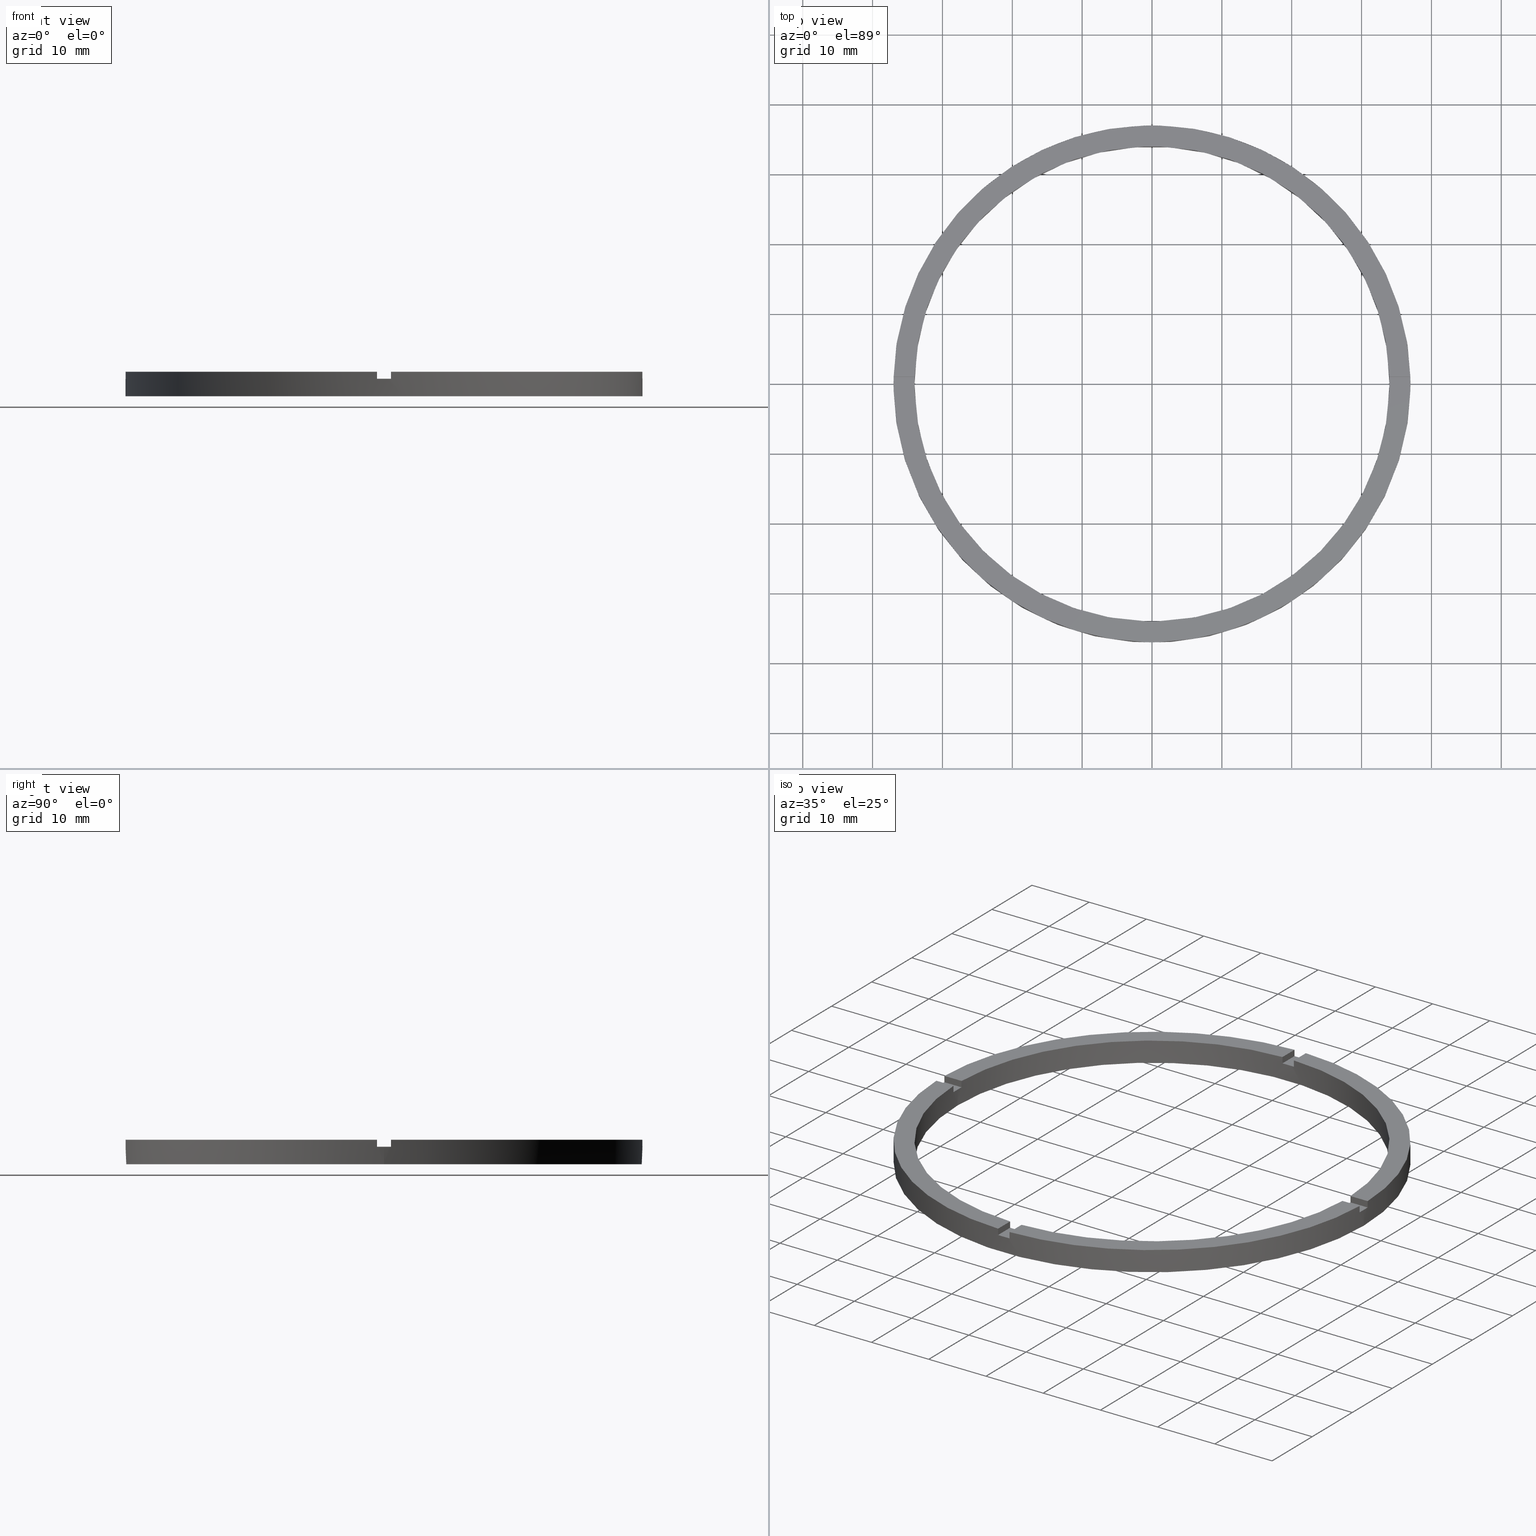
[diagram: canonical four-view strip — front | top / right | iso, engineering-drawing reading convention]
A machine part, canonical four-view strip (front | top / right | iso — engineering-drawing reading convention). The complete STEP part file that produces these views, byte-faithful:
ISO-10303-21;
HEADER;
FILE_DESCRIPTION (( 'STEP AP203' ),
    '1' );
FILE_NAME ('514153.step',
    '2024-12-26T02:42:40',
    ( 'MSI' ),
    ( '' ),
    'SwSTEP 2.0',
    'SolidWorks 2020',
    '' );
FILE_SCHEMA (( 'CONFIG_CONTROL_DESIGN' ));
ENDSEC;

DATA;
#1 = DATE_TIME_ROLE ( 'creation_date' ) ;
#2 = AXIS2_PLACEMENT_3D ( 'NONE', #488, #367, #44 ) ;
#3 = EDGE_CURVE ( 'NONE', #204, #340, #402, .T. ) ;
#4 = CARTESIAN_POINT ( 'NONE',  ( 0.9999999999998395728, -33.98529093593285921, 3.500000000000000000 ) ) ;
#5 = LINE ( 'NONE', #131, #246 ) ;
#6 = DIRECTION ( 'NONE',  ( 1.000000000000000000, 0.000000000000000000, 0.000000000000000000 ) ) ;
#7 = CARTESIAN_POINT ( 'NONE',  ( 0.000000000000000000, 0.000000000000000000, 0.000000000000000000 ) ) ;
#8 = VECTOR ( 'NONE', #225, 1000.000000000000000 ) ;
#9 = APPROVAL_ROLE ( '' ) ;
#10 = ADVANCED_FACE ( 'NONE', ( #653 ), #495, .F. ) ;
#11 = EDGE_CURVE ( 'NONE', #365, #234, #376, .T. ) ;
#12 = EDGE_CURVE ( 'NONE', #382, #31, #655, .T. ) ;
#13 = CIRCLE ( 'NONE', #335, 34.00000000000000000 ) ;
#14 = CARTESIAN_POINT ( 'NONE',  ( -34.00000000000000000, 0.000000000000000000, 0.000000000000000000 ) ) ;
#15 = PERSON_AND_ORGANIZATION_ROLE ( 'design_owner' ) ;
#16 = FACE_OUTER_BOUND ( 'NONE', #722, .T. ) ;
#17 = FACE_OUTER_BOUND ( 'NONE', #99, .T. ) ;
#18 = LINE ( 'NONE', #25, #20 ) ;
#19 = ORIENTED_EDGE ( 'NONE', *, *, #553, .F. ) ;
#20 = VECTOR ( 'NONE', #572, 1000.000000000000000 ) ;
#21 = ORIENTED_EDGE ( 'NONE', *, *, #283, .F. ) ;
#22 = DIRECTION ( 'NONE',  ( 1.000000000000000000, 0.000000000000000000, 0.000000000000000000 ) ) ;
#23 = EDGE_LOOP ( 'NONE', ( #554, #423, #146, #411, #272, #755 ) ) ;
#24 = CC_DESIGN_DATE_AND_TIME_ASSIGNMENT ( #323, #1, ( #505 ) ) ;
#25 = CARTESIAN_POINT ( 'NONE',  ( -1.000000000000161426, -27.00000000000017764, 3.500000000000000000 ) ) ;
#26 = CARTESIAN_POINT ( 'NONE',  ( 33.98529093593285921, 0.9999999999998421263, 2.500000000000000000 ) ) ;
#27 = ORIENTED_EDGE ( 'NONE', *, *, #713, .T. ) ;
#28 = ADVANCED_FACE ( 'NONE', ( #390 ), #728, .F. ) ;
#29 = DIRECTION ( 'NONE',  ( 1.951563910473907735E-16, -1.000000000000000000, 0.000000000000000000 ) ) ;
#30 = AXIS2_PLACEMENT_3D ( 'NONE', #575, #657, #48 ) ;
#31 = VERTEX_POINT ( 'NONE', #252 ) ;
#32 = DIRECTION ( 'NONE',  ( -0.000000000000000000, -0.000000000000000000, -1.000000000000000000 ) ) ;
#33 = EDGE_CURVE ( 'NONE', #623, #206, #118, .T. ) ;
#34 = EDGE_CURVE ( 'NONE', #635, #352, #108, .T. ) ;
#35 = AXIS2_PLACEMENT_3D ( 'NONE', #217, #319, #585 ) ;
#36 = DIRECTION ( 'NONE',  ( 0.000000000000000000, 0.000000000000000000, 1.000000000000000000 ) ) ;
#37 = CARTESIAN_POINT ( 'NONE',  ( -33.98529093593285211, -1.000000000000026867, 3.500000000000000000 ) ) ;
#38 = PLANE ( 'NONE',  #583 ) ;
#39 = CARTESIAN_POINT ( 'NONE',  ( 0.000000000000000000, 0.000000000000000000, 2.500000000000000000 ) ) ;
#40 = DIRECTION ( 'NONE',  ( 1.000000000000000000, 0.000000000000000000, 0.000000000000000000 ) ) ;
#41 = EDGE_CURVE ( 'NONE', #739, #545, #643, .T. ) ;
#42 = DIRECTION ( 'NONE',  ( 1.000000000000000000, 0.000000000000000000, 0.000000000000000000 ) ) ;
#43 = PLANE ( 'NONE',  #113 ) ;
#44 = DIRECTION ( 'NONE',  ( 1.301042606982605074E-16, -1.000000000000000000, 0.000000000000000000 ) ) ;
#45 = APPLICATION_PROTOCOL_DEFINITION ( 'international standard', 'config_control_design', 1994, #490 ) ;
#46 = VECTOR ( 'NONE', #188, 1000.000000000000000 ) ;
#47 = LINE ( 'NONE', #442, #579 ) ;
#48 = DIRECTION ( 'NONE',  ( 1.000000000000000000, 0.000000000000000000, -0.000000000000000000 ) ) ;
#49 = CARTESIAN_POINT ( 'NONE',  ( -1.000000000000025091, 26.99999999999999645, 2.500000000000000000 ) ) ;
#50 = VECTOR ( 'NONE', #738, 1000.000000000000000 ) ;
#51 = SECURITY_CLASSIFICATION ( '', '', #243 ) ;
#52 = ADVANCED_FACE ( 'NONE', ( #404 ), #366, .T. ) ;
#53 = VECTOR ( 'NONE', #293, 1000.000000000000000 ) ;
#54 = CARTESIAN_POINT ( 'NONE',  ( 0.000000000000000000, 0.000000000000000000, 3.500000000000000000 ) ) ;
#55 = AXIS2_PLACEMENT_3D ( 'NONE', #304, #268, #190 ) ;
#56 = CARTESIAN_POINT ( 'NONE',  ( -36.98648401781385786, -1.000000000000027311, 3.500000000000000000 ) ) ;
#57 = ADVANCED_FACE ( 'NONE', ( #372 ), #727, .F. ) ;
#58 = LINE ( 'NONE', #170, #46 ) ;
#59 = DIRECTION ( 'NONE',  ( 1.000000000000000000, 1.951563910473907735E-16, -0.000000000000000000 ) ) ;
#60 = CARTESIAN_POINT ( 'NONE',  ( 37.00000000000000000, 4.531193156845206793E-15, 2.500000000000000000 ) ) ;
#61 = DIRECTION ( 'NONE',  ( 1.000000000000000000, 1.301042606982605074E-16, 0.000000000000000000 ) ) ;
#62 = ORGANIZATION ( 'δָ��', 'δָ��', '' ) ;
#63 = CALENDAR_DATE ( 2024, 26, 12 ) ;
#64 = EDGE_CURVE ( 'NONE', #31, #493, #393, .T. ) ;
#65 = CARTESIAN_POINT ( 'NONE',  ( 0.000000000000000000, 0.000000000000000000, 3.500000000000000000 ) ) ;
#66 = AXIS2_PLACEMENT_3D ( 'NONE', #528, #568, #156 ) ;
#67 = APPROVAL_DATE_TIME ( #588, #523 ) ;
#68 = CARTESIAN_POINT ( 'NONE',  ( 0.000000000000000000, 0.000000000000000000, 3.500000000000000000 ) ) ;
#69 = PERSON_AND_ORGANIZATION ( #279, #62 ) ;
#70 = PERSON_AND_ORGANIZATION_ROLE ( 'design_supplier' ) ;
#71 = LOCAL_TIME ( 10, 42, 40.00000000000000000, #88 ) ;
#72 = DIRECTION ( 'NONE',  ( 1.000000000000000000, 0.000000000000000000, 0.000000000000000000 ) ) ;
#73 = APPROVAL_DATE_TIME ( #78, #651 ) ;
#74 = DIRECTION ( 'NONE',  ( 0.000000000000000000, 0.000000000000000000, 1.000000000000000000 ) ) ;
#75 = COORDINATED_UNIVERSAL_TIME_OFFSET ( 8, 0, .AHEAD. ) ;
#76 = EDGE_CURVE ( 'NONE', #150, #648, #659, .T. ) ;
#77 = CIRCLE ( 'NONE', #412, 37.00000000000000000 ) ;
#78 = DATE_AND_TIME ( #610, #315 ) ;
#79 = FACE_OUTER_BOUND ( 'NONE', #353, .T. ) ;
#80 = LINE ( 'NONE', #520, #629 ) ;
#81 = APPROVAL_PERSON_ORGANIZATION ( #69, #328, #431 ) ;
#82 = DIRECTION ( 'NONE',  ( 0.000000000000000000, 0.000000000000000000, 1.000000000000000000 ) ) ;
#83 = VECTOR ( 'NONE', #625, 1000.000000000000000 ) ;
#84 = APPROVAL_PERSON_ORGANIZATION ( #607, #651, #361 ) ;
#85 = DIRECTION ( 'NONE',  ( 1.000000000000000000, 0.000000000000000000, -0.000000000000000000 ) ) ;
#86 = PERSON_AND_ORGANIZATION ( #279, #62 ) ;
#87 = VECTOR ( 'NONE', #185, 1000.000000000000000 ) ;
#88 = COORDINATED_UNIVERSAL_TIME_OFFSET ( 8, 0, .AHEAD. ) ;
#89 = LINE ( 'NONE', #305, #83 ) ;
#90 = ORIENTED_EDGE ( 'NONE', *, *, #514, .F. ) ;
#91 = ORIENTED_EDGE ( 'NONE', *, *, #64, .T. ) ;
#92 = DIRECTION ( 'NONE',  ( -1.000000000000000000, 0.000000000000000000, 0.000000000000000000 ) ) ;
#93 = DIRECTION ( 'NONE',  ( -0.000000000000000000, -0.000000000000000000, -1.000000000000000000 ) ) ;
#94 = LINE ( 'NONE', #37, #617 ) ;
#95 = PRODUCT ( '514153', '514153', '', ( #496 ) ) ;
#96 = EDGE_LOOP ( 'NONE', ( #647, #377, #497, #133, #154, #628 ) ) ;
#97 = DIRECTION ( 'NONE',  ( 0.000000000000000000, 0.000000000000000000, 1.000000000000000000 ) ) ;
#98 = VECTOR ( 'NONE', #444, 1000.000000000000000 ) ;
#99 = EDGE_LOOP ( 'NONE', ( #731, #285, #455, #538 ) ) ;
#100 = DIRECTION ( 'NONE',  ( 0.000000000000000000, 0.000000000000000000, 1.000000000000000000 ) ) ;
#101 = AXIS2_PLACEMENT_3D ( 'NONE', #502, #535, #248 ) ;
#102 = CLOSED_SHELL ( 'NONE', ( #177, #478, #447, #381, #565, #52, #299, #593, #513, #698, #10, #291, #28, #606, #191, #266, #351, #429, #157, #57, #620 ) ) ;
#103 = DIRECTION ( 'NONE',  ( -0.000000000000000000, 0.000000000000000000, 1.000000000000000000 ) ) ;
#104 = DIRECTION ( 'NONE',  ( 1.000000000000000000, 0.000000000000000000, -0.000000000000000000 ) ) ;
#105 = CIRCLE ( 'NONE', #35, 37.00000000000000000 ) ;
#106 = ORIENTED_EDGE ( 'NONE', *, *, #445, .T. ) ;
#107 = ORIENTED_EDGE ( 'NONE', *, *, #515, .F. ) ;
#108 = LINE ( 'NONE', #689, #120 ) ;
#109 = VERTEX_POINT ( 'NONE', #433 ) ;
#110 = EDGE_CURVE ( 'NONE', #224, #684, #123, .T. ) ;
#111 = CARTESIAN_POINT ( 'NONE',  ( 33.98529093593285211, -1.000000000000157874, 3.500000000000000000 ) ) ;
#112 = AXIS2_PLACEMENT_3D ( 'NONE', #54, #435, #138 ) ;
#113 = AXIS2_PLACEMENT_3D ( 'NONE', #470, #783, #117 ) ;
#114 = VERTEX_POINT ( 'NONE', #430 ) ;
#115 = VERTEX_POINT ( 'NONE', #705 ) ;
#116 = ORIENTED_EDGE ( 'NONE', *, *, #479, .F. ) ;
#117 = DIRECTION ( 'NONE',  ( 1.000000000000000000, 6.505213034913025371E-17, 0.000000000000000000 ) ) ;
#118 = LINE ( 'NONE', #561, #137 ) ;
#119 = ORIENTED_EDGE ( 'NONE', *, *, #362, .F. ) ;
#120 = VECTOR ( 'NONE', #59, 1000.000000000000000 ) ;
#121 = VERTEX_POINT ( 'NONE', #543 ) ;
#122 = DIRECTION ( 'NONE',  ( -1.000000000000000000, 0.000000000000000000, 0.000000000000000000 ) ) ;
#123 = LINE ( 'NONE', #174, #129 ) ;
#124 = ORIENTED_EDGE ( 'NONE', *, *, #466, .F. ) ;
#125 = ORIENTED_EDGE ( 'NONE', *, *, #700, .F. ) ;
#126 = DIRECTION ( 'NONE',  ( 1.000000000000000000, 1.951563910473907735E-16, 0.000000000000000000 ) ) ;
#127 = ORIENTED_EDGE ( 'NONE', *, *, #632, .F. ) ;
#128 = ORIENTED_EDGE ( 'NONE', *, *, #770, .T. ) ;
#129 = VECTOR ( 'NONE', #679, 1000.000000000000000 ) ;
#130 = ORIENTED_EDGE ( 'NONE', *, *, #553, .T. ) ;
#131 = CARTESIAN_POINT ( 'NONE',  ( 33.98529093593285921, 0.9999999999998421263, 3.500000000000000000 ) ) ;
#132 = CARTESIAN_POINT ( 'NONE',  ( 0.9999999999999749090, 26.99999999999999645, 2.500000000000000000 ) ) ;
#133 = ORIENTED_EDGE ( 'NONE', *, *, #531, .F. ) ;
#134 = CARTESIAN_POINT ( 'NONE',  ( 0.9999999999999749090, 33.98529093593285921, 3.500000000000000000 ) ) ;
#135 = VECTOR ( 'NONE', #180, 1000.000000000000000 ) ;
#136 = ORIENTED_EDGE ( 'NONE', *, *, #250, .F. ) ;
#137 = VECTOR ( 'NONE', #373, 1000.000000000000000 ) ;
#138 = DIRECTION ( 'NONE',  ( 1.000000000000000000, 0.000000000000000000, -0.000000000000000000 ) ) ;
#139 = AXIS2_PLACEMENT_3D ( 'NONE', #536, #649, #122 ) ;
#140 = CARTESIAN_POINT ( 'NONE',  ( 0.9999999999999749090, 26.99999999999999645, 3.500000000000000000 ) ) ;
#141 = DIRECTION ( 'NONE',  ( -1.301042606982605074E-16, 1.000000000000000000, 0.000000000000000000 ) ) ;
#142 = ORIENTED_EDGE ( 'NONE', *, *, #531, .T. ) ;
#143 = EDGE_LOOP ( 'NONE', ( #196, #645, #465, #482 ) ) ;
#144 = ORIENTED_EDGE ( 'NONE', *, *, #312, .F. ) ;
#145 = EDGE_LOOP ( 'NONE', ( #761, #91 ) ) ;
#146 = ORIENTED_EDGE ( 'NONE', *, *, #438, .T. ) ;
#147 = DIRECTION ( 'NONE',  ( 0.000000000000000000, 0.000000000000000000, 1.000000000000000000 ) ) ;
#148 = DIRECTION ( 'NONE',  ( 1.000000000000000000, 0.000000000000000000, 0.000000000000000000 ) ) ;
#149 = CARTESIAN_POINT ( 'NONE',  ( -37.00000000000000000, 0.000000000000000000, 2.500000000000000000 ) ) ;
#150 = VERTEX_POINT ( 'NONE', #405 ) ;
#151 = AXIS2_PLACEMENT_3D ( 'NONE', #552, #608, #436 ) ;
#152 = VERTEX_POINT ( 'NONE', #769 ) ;
#153 = DIRECTION ( 'NONE',  ( 0.000000000000000000, 0.000000000000000000, 1.000000000000000000 ) ) ;
#154 = ORIENTED_EDGE ( 'NONE', *, *, #504, .F. ) ;
#155 = LINE ( 'NONE', #454, #426 ) ;
#156 = DIRECTION ( 'NONE',  ( 1.000000000000000000, 0.000000000000000000, -0.000000000000000000 ) ) ;
#157 = ADVANCED_FACE ( 'NONE', ( #662 ), #706, .F. ) ;
#158 = DIRECTION ( 'NONE',  ( 1.000000000000000000, 0.000000000000000000, 0.000000000000000000 ) ) ;
#159 = CIRCLE ( 'NONE', #290, 37.00000000000000000 ) ;
#160 = EDGE_CURVE ( 'NONE', #375, #204, #669, .T. ) ;
#161 = DIRECTION ( 'NONE',  ( 1.000000000000000000, 0.000000000000000000, 0.000000000000000000 ) ) ;
#162 = DIRECTION ( 'NONE',  ( 0.000000000000000000, 0.000000000000000000, 1.000000000000000000 ) ) ;
#163 = DIRECTION ( 'NONE',  ( 0.000000000000000000, 0.000000000000000000, 1.000000000000000000 ) ) ;
#164 = DIRECTION ( 'NONE',  ( 1.000000000000000000, 0.000000000000000000, 0.000000000000000000 ) ) ;
#165 = CC_DESIGN_SECURITY_CLASSIFICATION ( #51, ( #296 ) ) ;
#166 = DIRECTION ( 'NONE',  ( -1.000000000000000000, -6.505213034913025371E-17, 0.000000000000000000 ) ) ;
#167 = AXIS2_PLACEMENT_3D ( 'NONE', #39, #103, #164 ) ;
#168 = DIRECTION ( 'NONE',  ( 0.000000000000000000, 0.000000000000000000, 1.000000000000000000 ) ) ;
#169 = DIRECTION ( 'NONE',  ( 1.000000000000000000, 0.000000000000000000, 0.000000000000000000 ) ) ;
#170 = CARTESIAN_POINT ( 'NONE',  ( -27.00000000000018474, 0.9999999999999746869, 2.500000000000000000 ) ) ;
#171 = AXIS2_PLACEMENT_3D ( 'NONE', #754, #29, #126 ) ;
#172 = AXIS2_PLACEMENT_3D ( 'NONE', #563, #74, #567 ) ;
#173 = DIRECTION ( 'NONE',  ( 0.000000000000000000, 0.000000000000000000, 1.000000000000000000 ) ) ;
#174 = CARTESIAN_POINT ( 'NONE',  ( -27.00000000000018474, 0.9999999999999746869, 3.500000000000000000 ) ) ;
#175 = CARTESIAN_POINT ( 'NONE',  ( 0.000000000000000000, 0.000000000000000000, 2.500000000000000000 ) ) ;
#176 = CARTESIAN_POINT ( 'NONE',  ( -34.00000000000000000, 0.000000000000000000, 3.500000000000000000 ) ) ;
#177 = ADVANCED_FACE ( 'NONE', ( #425 ), #680, .F. ) ;
#178 = DIRECTION ( 'NONE',  ( -0.000000000000000000, -0.000000000000000000, -1.000000000000000000 ) ) ;
#179 = EDGE_CURVE ( 'NONE', #340, #742, #155, .T. ) ;
#180 = DIRECTION ( 'NONE',  ( -0.000000000000000000, -0.000000000000000000, -1.000000000000000000 ) ) ;
#181 = EDGE_CURVE ( 'NONE', #686, #461, #159, .T. ) ;
#182 = EDGE_CURVE ( 'NONE', #203, #114, #677, .T. ) ;
#183 = DIRECTION ( 'NONE',  ( 1.000000000000000000, 0.000000000000000000, 0.000000000000000000 ) ) ;
#184 = DIRECTION ( 'NONE',  ( 1.000000000000000000, -0.000000000000000000, 0.000000000000000000 ) ) ;
#185 = DIRECTION ( 'NONE',  ( 0.000000000000000000, 1.000000000000000000, 0.000000000000000000 ) ) ;
#186 = CARTESIAN_POINT ( 'NONE',  ( 34.00000000000000000, 4.163799117101000559E-15, 3.500000000000000000 ) ) ;
#187 = EDGE_CURVE ( 'NONE', #375, #742, #105, .T. ) ;
#188 = DIRECTION ( 'NONE',  ( -1.000000000000000000, -1.951563910473907735E-16, 0.000000000000000000 ) ) ;
#189 = DIRECTION ( 'NONE',  ( -1.000000000000000000, 0.000000000000000000, 0.000000000000000000 ) ) ;
#190 = DIRECTION ( 'NONE',  ( 1.000000000000000000, 0.000000000000000000, -0.000000000000000000 ) ) ;
#191 = ADVANCED_FACE ( 'NONE', ( #356 ), #707, .T. ) ;
#192 = ORIENTED_EDGE ( 'NONE', *, *, #600, .F. ) ;
#193 = CC_DESIGN_DATE_AND_TIME_ASSIGNMENT ( #605, #618, ( #51 ) ) ;
#194 = CARTESIAN_POINT ( 'NONE',  ( -36.98648401781385786, 0.9999999999999726885, 3.500000000000000000 ) ) ;
#195 = ORIENTED_EDGE ( 'NONE', *, *, #3, .T. ) ;
#196 = ORIENTED_EDGE ( 'NONE', *, *, #160, .T. ) ;
#197 = ORIENTED_EDGE ( 'NONE', *, *, #263, .T. ) ;
#198 = AXIS2_PLACEMENT_3D ( 'NONE', #530, #582, #472 ) ;
#199 = CARTESIAN_POINT ( 'NONE',  ( 36.98648401781385076, -1.000000000000157652, 3.500000000000000000 ) ) ;
#200 = ORIENTED_EDGE ( 'NONE', *, *, #160, .F. ) ;
#201 = ORIENTED_EDGE ( 'NONE', *, *, #41, .T. ) ;
#202 = ORIENTED_EDGE ( 'NONE', *, *, #261, .F. ) ;
#203 = VERTEX_POINT ( 'NONE', #292 ) ;
#204 = VERTEX_POINT ( 'NONE', #4 ) ;
#205 = EDGE_CURVE ( 'NONE', #623, #480, #326, .T. ) ;
#206 = VERTEX_POINT ( 'NONE', #771 ) ;
#207 = DIRECTION ( 'NONE',  ( 1.000000000000000000, 6.505213034913025371E-17, 0.000000000000000000 ) ) ;
#208 = ORIENTED_EDGE ( 'NONE', *, *, #12, .F. ) ;
#209 = EDGE_CURVE ( 'NONE', #204, #654, #342, .T. ) ;
#210 = AXIS2_PLACEMENT_3D ( 'NONE', #68, #701, #417 ) ;
#211 = DIRECTION ( 'NONE',  ( 0.000000000000000000, 0.000000000000000000, 1.000000000000000000 ) ) ;
#212 = ORIENTED_EDGE ( 'NONE', *, *, #362, .T. ) ;
#213 = FACE_OUTER_BOUND ( 'NONE', #670, .T. ) ;
#214 = CIRCLE ( 'NONE', #198, 37.00000000000000000 ) ;
#215 = ORIENTED_EDGE ( 'NONE', *, *, #308, .F. ) ;
#216 = DIRECTION ( 'NONE',  ( 0.000000000000000000, 0.000000000000000000, 1.000000000000000000 ) ) ;
#217 = CARTESIAN_POINT ( 'NONE',  ( 0.000000000000000000, 0.000000000000000000, 3.500000000000000000 ) ) ;
#218 = ORIENTED_EDGE ( 'NONE', *, *, #182, .T. ) ;
#219 = ORIENTED_EDGE ( 'NONE', *, *, #422, .T. ) ;
#220 = DIRECTION ( 'NONE',  ( 1.000000000000000000, 0.000000000000000000, -0.000000000000000000 ) ) ;
#221 = ORIENTED_EDGE ( 'NONE', *, *, #702, .F. ) ;
#222 = EDGE_CURVE ( 'NONE', #737, #352, #94, .T. ) ;
#223 = LINE ( 'NONE', #111, #744 ) ;
#224 = VERTEX_POINT ( 'NONE', #286 ) ;
#225 = DIRECTION ( 'NONE',  ( -0.000000000000000000, -0.000000000000000000, -1.000000000000000000 ) ) ;
#226 = VERTEX_POINT ( 'NONE', #448 ) ;
#227 = ORIENTED_EDGE ( 'NONE', *, *, #181, .T. ) ;
#228 = CARTESIAN_POINT ( 'NONE',  ( 34.00000000000000000, 4.163799117101000559E-15, 2.500000000000000000 ) ) ;
#229 = CIRCLE ( 'NONE', #696, 37.00000000000000000 ) ;
#230 = ORIENTED_EDGE ( 'NONE', *, *, #479, .T. ) ;
#231 = ORIENTED_EDGE ( 'NONE', *, *, #570, .F. ) ;
#232 = LINE ( 'NONE', #257, #241 ) ;
#233 = ORIENTED_EDGE ( 'NONE', *, *, #419, .T. ) ;
#234 = VERTEX_POINT ( 'NONE', #777 ) ;
#235 = ORIENTED_EDGE ( 'NONE', *, *, #719, .F. ) ;
#236 = ORIENTED_EDGE ( 'NONE', *, *, #308, .T. ) ;
#237 = CARTESIAN_POINT ( 'NONE',  ( 33.98529093593285211, -1.000000000000157874, 3.500000000000000000 ) ) ;
#238 = PLANE ( 'NONE',  #708 ) ;
#239 = CARTESIAN_POINT ( 'NONE',  ( 0.000000000000000000, 0.000000000000000000, 0.000000000000000000 ) ) ;
#240 = CC_DESIGN_PERSON_AND_ORGANIZATION_ASSIGNMENT ( #318, #374, ( #296 ) ) ;
#241 = VECTOR ( 'NONE', #452, 1000.000000000000000 ) ;
#242 = VECTOR ( 'NONE', #773, 1000.000000000000000 ) ;
#243 = SECURITY_CLASSIFICATION_LEVEL ( 'unclassified' ) ;
#244 = CIRCLE ( 'NONE', #710, 34.00000000000000000 ) ;
#245 = CARTESIAN_POINT ( 'NONE',  ( -37.00000000000000000, 0.000000000000000000, 0.000000000000000000 ) ) ;
#246 = VECTOR ( 'NONE', #178, 1000.000000000000000 ) ;
#247 = CARTESIAN_POINT ( 'NONE',  ( -37.00000000000000000, 0.000000000000000000, 3.500000000000000000 ) ) ;
#248 = DIRECTION ( 'NONE',  ( 1.000000000000000000, 0.000000000000000000, 0.000000000000000000 ) ) ;
#249 = VECTOR ( 'NONE', #97, 1000.000000000000000 ) ;
#250 = EDGE_CURVE ( 'NONE', #234, #623, #77, .T. ) ;
#251 = CARTESIAN_POINT ( 'NONE',  ( -36.98648401781385786, -1.000000000000027311, 2.500000000000000000 ) ) ;
#252 = CARTESIAN_POINT ( 'NONE',  ( 34.00000000000000000, 4.163799117101000559E-15, 0.000000000000000000 ) ) ;
#253 = AXIS2_PLACEMENT_3D ( 'NONE', #132, #184, #687 ) ;
#254 = AXIS2_PLACEMENT_3D ( 'NONE', #486, #82, #325 ) ;
#255 = LINE ( 'NONE', #556, #249 ) ;
#256 = PLANE ( 'NONE',  #2 ) ;
#257 = CARTESIAN_POINT ( 'NONE',  ( -1.000000000000025091, 26.99999999999999645, 3.500000000000000000 ) ) ;
#258 = CARTESIAN_POINT ( 'NONE',  ( -33.98529093593285921, 0.9999999999999731326, 2.500000000000000000 ) ) ;
#259 = CARTESIAN_POINT ( 'NONE',  ( -1.000000000000025091, 26.99999999999999645, 2.500000000000000000 ) ) ;
#260 = DESIGN_CONTEXT ( 'detailed design', #384, 'design' ) ;
#261 = EDGE_CURVE ( 'NONE', #745, #492, #622, .T. ) ;
#262 = DIRECTION ( 'NONE',  ( 0.000000000000000000, 0.000000000000000000, 1.000000000000000000 ) ) ;
#263 = EDGE_CURVE ( 'NONE', #745, #480, #80, .T. ) ;
#264 = CARTESIAN_POINT ( 'NONE',  ( 0.9999999999998400169, -36.98648401781386497, 3.500000000000000000 ) ) ;
#265 = CIRCLE ( 'NONE', #688, 34.00000000000000000 ) ;
#266 = ADVANCED_FACE ( 'NONE', ( #634 ), #334, .F. ) ;
#267 = FACE_OUTER_BOUND ( 'NONE', #748, .T. ) ;
#268 = DIRECTION ( 'NONE',  ( 0.000000000000000000, 0.000000000000000000, 1.000000000000000000 ) ) ;
#269 = CIRCLE ( 'NONE', #167, 34.00000000000000000 ) ;
#270 = AXIS2_PLACEMENT_3D ( 'NONE', #301, #775, #453 ) ;
#271 = LINE ( 'NONE', #715, #276 ) ;
#272 = ORIENTED_EDGE ( 'NONE', *, *, #445, .F. ) ;
#273 = DIRECTION ( 'NONE',  ( 1.301042606982605074E-16, -1.000000000000000000, 0.000000000000000000 ) ) ;
#274 = ORIENTED_EDGE ( 'NONE', *, *, #676, .F. ) ;
#275 = DIRECTION ( 'NONE',  ( -0.000000000000000000, 0.000000000000000000, 1.000000000000000000 ) ) ;
#276 = VECTOR ( 'NONE', #341, 1000.000000000000000 ) ;
#277 = VECTOR ( 'NONE', #311, 1000.000000000000000 ) ;
#278 = ORIENTED_EDGE ( 'NONE', *, *, #504, .T. ) ;
#279 = PERSON ( 'δָ��', 'δָ��', 'δָ��', ('δָ��'), ('δָ��'), ('δָ��') ) ;
#280 = DIRECTION ( 'NONE',  ( 1.000000000000000000, 0.000000000000000000, 0.000000000000000000 ) ) ;
#281 = DIRECTION ( 'NONE',  ( -1.000000000000000000, 0.000000000000000000, 0.000000000000000000 ) ) ;
#282 = FACE_BOUND ( 'NONE', #145, .T. ) ;
#283 = EDGE_CURVE ( 'NONE', #114, #226, #359, .T. ) ;
#284 = DIRECTION ( 'NONE',  ( 0.000000000000000000, 0.000000000000000000, 1.000000000000000000 ) ) ;
#285 = ORIENTED_EDGE ( 'NONE', *, *, #466, .T. ) ;
#286 = CARTESIAN_POINT ( 'NONE',  ( -33.98529093593285921, 0.9999999999999731326, 3.500000000000000000 ) ) ;
#287 = CARTESIAN_POINT ( 'NONE',  ( 0.000000000000000000, 0.000000000000000000, 3.500000000000000000 ) ) ;
#288 = PLANE ( 'NONE',  #55 ) ;
#289 = EDGE_CURVE ( 'NONE', #109, #461, #18, .T. ) ;
#290 = AXIS2_PLACEMENT_3D ( 'NONE', #550, #36, #757 ) ;
#291 = ADVANCED_FACE ( 'NONE', ( #549 ), #518, .T. ) ;
#292 = CARTESIAN_POINT ( 'NONE',  ( -1.000000000000160538, -33.98529093593285211, 2.500000000000000000 ) ) ;
#293 = DIRECTION ( 'NONE',  ( -0.000000000000000000, -1.000000000000000000, -0.000000000000000000 ) ) ;
#294 = CARTESIAN_POINT ( 'NONE',  ( 0.000000000000000000, 0.000000000000000000, 3.500000000000000000 ) ) ;
#295 = APPLICATION_PROTOCOL_DEFINITION ( 'international standard', 'config_control_design', 1994, #384 ) ;
#296 = PRODUCT_DEFINITION_FORMATION_WITH_SPECIFIED_SOURCE ( '�κ�', '', #95, .NOT_KNOWN. ) ;
#297 = CARTESIAN_POINT ( 'NONE',  ( 0.000000000000000000, 0.000000000000000000, 3.500000000000000000 ) ) ;
#298 =( NAMED_UNIT ( * ) PLANE_ANGLE_UNIT ( ) SI_UNIT ( $, .RADIAN. ) );
#299 = ADVANCED_FACE ( 'NONE', ( #16, #282 ), #576, .F. ) ;
#300 = AXIS2_PLACEMENT_3D ( 'NONE', #507, #691, #72 ) ;
#301 = CARTESIAN_POINT ( 'NONE',  ( 0.000000000000000000, 0.000000000000000000, 3.500000000000000000 ) ) ;
#302 = CARTESIAN_POINT ( 'NONE',  ( 0.9999999999998395728, -33.98529093593285921, 2.500000000000000000 ) ) ;
#303 = DIRECTION ( 'NONE',  ( -1.000000000000000000, -1.951563910473907735E-16, 0.000000000000000000 ) ) ;
#304 = CARTESIAN_POINT ( 'NONE',  ( 0.000000000000000000, 0.000000000000000000, 3.500000000000000000 ) ) ;
#305 = CARTESIAN_POINT ( 'NONE',  ( 26.99999999999998934, 0.9999999999998416822, 3.500000000000000000 ) ) ;
#306 =( GEOMETRIC_REPRESENTATION_CONTEXT ( 3 ) GLOBAL_UNCERTAINTY_ASSIGNED_CONTEXT ( ( #407 ) ) GLOBAL_UNIT_ASSIGNED_CONTEXT ( ( #307, #298, #598 ) ) REPRESENTATION_CONTEXT ( 'NONE', 'WORKASPACE' ) );
#307 =( LENGTH_UNIT ( ) NAMED_UNIT ( * ) SI_UNIT ( .MILLI., .METRE. ) );
#308 = EDGE_CURVE ( 'NONE', #203, #109, #533, .T. ) ;
#309 = VECTOR ( 'NONE', #589, 1000.000000000000000 ) ;
#310 = DIRECTION ( 'NONE',  ( -0.000000000000000000, -0.000000000000000000, -1.000000000000000000 ) ) ;
#311 = DIRECTION ( 'NONE',  ( 0.000000000000000000, 0.000000000000000000, 1.000000000000000000 ) ) ;
#312 = EDGE_CURVE ( 'NONE', #658, #121, #542, .T. ) ;
#313 = LINE ( 'NONE', #176, #50 ) ;
#314 = VECTOR ( 'NONE', #310, 1000.000000000000000 ) ;
#315 = LOCAL_TIME ( 10, 42, 40.00000000000000000, #597 ) ;
#316 = DATE_AND_TIME ( #63, #584 ) ;
#317 = APPROVAL_PERSON_ORGANIZATION ( #612, #523, #9 ) ;
#318 = PERSON_AND_ORGANIZATION ( #279, #62 ) ;
#319 = DIRECTION ( 'NONE',  ( 0.000000000000000000, 0.000000000000000000, 1.000000000000000000 ) ) ;
#320 = CARTESIAN_POINT ( 'NONE',  ( 0.9999999999998395728, -33.98529093593285921, 3.500000000000000000 ) ) ;
#321 = APPROVAL_DATE_TIME ( #316, #328 ) ;
#322 = CIRCLE ( 'NONE', #396, 34.00000000000000000 ) ;
#323 = DATE_AND_TIME ( #586, #327 ) ;
#324 = PERSON_AND_ORGANIZATION ( #279, #62 ) ;
#325 = DIRECTION ( 'NONE',  ( 1.000000000000000000, 0.000000000000000000, 0.000000000000000000 ) ) ;
#326 = CIRCLE ( 'NONE', #254, 37.00000000000000000 ) ;
#327 = LOCAL_TIME ( 10, 42, 40.00000000000000000, #591 ) ;
#328 = APPROVAL ( #350, 'δָ��' ) ;
#329 = LOCAL_TIME ( 10, 42, 40.00000000000000000, #75 ) ;
#330 = COORDINATED_UNIVERSAL_TIME_OFFSET ( 8, 0, .AHEAD. ) ;
#331 = LINE ( 'NONE', #264, #314 ) ;
#332 = CALENDAR_DATE ( 2024, 26, 12 ) ;
#333 = FACE_OUTER_BOUND ( 'NONE', #469, .T. ) ;
#334 = PLANE ( 'NONE',  #571 ) ;
#335 = AXIS2_PLACEMENT_3D ( 'NONE', #297, #216, #280 ) ;
#336 = DIRECTION ( 'NONE',  ( 0.000000000000000000, 0.000000000000000000, 1.000000000000000000 ) ) ;
#337 = LINE ( 'NONE', #383, #98 ) ;
#338 = CARTESIAN_POINT ( 'NONE',  ( -34.00000000000000000, 0.000000000000000000, 2.500000000000000000 ) ) ;
#339 = FACE_OUTER_BOUND ( 'NONE', #724, .T. ) ;
#340 = VERTEX_POINT ( 'NONE', #237 ) ;
#341 = DIRECTION ( 'NONE',  ( 0.000000000000000000, 0.000000000000000000, 1.000000000000000000 ) ) ;
#342 = LINE ( 'NONE', #320, #364 ) ;
#343 = ORIENTED_EDGE ( 'NONE', *, *, #665, .T. ) ;
#344 = EDGE_CURVE ( 'NONE', #152, #684, #271, .T. ) ;
#345 = ORIENTED_EDGE ( 'NONE', *, *, #64, .F. ) ;
#346 = ORIENTED_EDGE ( 'NONE', *, *, #438, .F. ) ;
#347 = AXIS2_PLACEMENT_3D ( 'NONE', #767, #211, #161 ) ;
#348 = DIRECTION ( 'NONE',  ( -0.000000000000000000, -0.000000000000000000, -1.000000000000000000 ) ) ;
#349 = ORIENTED_EDGE ( 'NONE', *, *, #460, .T. ) ;
#350 = APPROVAL_STATUS ( 'not_yet_approved' ) ;
#351 = ADVANCED_FACE ( 'NONE', ( #17 ), #43, .F. ) ;
#352 = VERTEX_POINT ( 'NONE', #780 ) ;
#353 = EDGE_LOOP ( 'NONE', ( #459, #721, #555, #235 ) ) ;
#354 = LINE ( 'NONE', #733, #615 ) ;
#355 = CARTESIAN_POINT ( 'NONE',  ( 36.98648401781386497, 0.9999999999998423483, 2.500000000000000000 ) ) ;
#356 = FACE_OUTER_BOUND ( 'NONE', #473, .T. ) ;
#357 = ORIENTED_EDGE ( 'NONE', *, *, #569, .T. ) ;
#358 = DIRECTION ( 'NONE',  ( -0.000000000000000000, 0.000000000000000000, 1.000000000000000000 ) ) ;
#359 = CIRCLE ( 'NONE', #621, 37.00000000000000000 ) ;
#360 = ORIENTED_EDGE ( 'NONE', *, *, #703, .F. ) ;
#361 = APPROVAL_ROLE ( '' ) ;
#362 = EDGE_CURVE ( 'NONE', #737, #109, #546, .T. ) ;
#363 = EDGE_CURVE ( 'NONE', #152, #739, #229, .T. ) ;
#364 = VECTOR ( 'NONE', #93, 1000.000000000000000 ) ;
#365 = VERTEX_POINT ( 'NONE', #379 ) ;
#366 = PLANE ( 'NONE',  #112 ) ;
#367 = DIRECTION ( 'NONE',  ( -1.000000000000000000, -1.301042606982605074E-16, 0.000000000000000000 ) ) ;
#368 = DIRECTION ( 'NONE',  ( -1.951563910473907735E-16, 1.000000000000000000, 0.000000000000000000 ) ) ;
#369 = CARTESIAN_POINT ( 'NONE',  ( -33.98529093593285211, -1.000000000000026867, 3.500000000000000000 ) ) ;
#370 = DIRECTION ( 'NONE',  ( 0.000000000000000000, -0.000000000000000000, 1.000000000000000000 ) ) ;
#371 = ORIENTED_EDGE ( 'NONE', *, *, #12, .T. ) ;
#372 = FACE_OUTER_BOUND ( 'NONE', #467, .T. ) ;
#373 = DIRECTION ( 'NONE',  ( -0.000000000000000000, -0.000000000000000000, -1.000000000000000000 ) ) ;
#374 = PERSON_AND_ORGANIZATION_ROLE ( 'creator' ) ;
#375 = VERTEX_POINT ( 'NONE', #578 ) ;
#376 = LINE ( 'NONE', #501, #410 ) ;
#377 = ORIENTED_EDGE ( 'NONE', *, *, #570, .T. ) ;
#378 = ORIENTED_EDGE ( 'NONE', *, *, #261, .T. ) ;
#379 = CARTESIAN_POINT ( 'NONE',  ( 33.98529093593285211, -1.000000000000157874, 2.500000000000000000 ) ) ;
#380 = ORIENTED_EDGE ( 'NONE', *, *, #702, .T. ) ;
#381 = ADVANCED_FACE ( 'NONE', ( #509 ), #661, .T. ) ;
#382 = VERTEX_POINT ( 'NONE', #228 ) ;
#383 = CARTESIAN_POINT ( 'NONE',  ( 0.9999999999999749090, 36.98648401781385786, 3.500000000000000000 ) ) ;
#384 = APPLICATION_CONTEXT ( 'configuration controlled 3d designs of mechanical parts and assemblies' ) ;
#385 = VECTOR ( 'NONE', #348, 1000.000000000000000 ) ;
#386 = ORIENTED_EDGE ( 'NONE', *, *, #344, .F. ) ;
#387 = ORIENTED_EDGE ( 'NONE', *, *, #713, .F. ) ;
#388 = CC_DESIGN_APPROVAL ( #523, ( #296 ) ) ;
#389 = ORIENTED_EDGE ( 'NONE', *, *, #41, .F. ) ;
#390 = FACE_OUTER_BOUND ( 'NONE', #143, .T. ) ;
#391 = DIRECTION ( 'NONE',  ( 0.000000000000000000, 0.000000000000000000, 1.000000000000000000 ) ) ;
#392 = VERTEX_POINT ( 'NONE', #338 ) ;
#393 = CIRCLE ( 'NONE', #537, 34.00000000000000000 ) ;
#394 = ORIENTED_EDGE ( 'NONE', *, *, #760, .T. ) ;
#395 = CARTESIAN_POINT ( 'NONE',  ( -36.98648401781385786, -1.000000000000027311, 3.500000000000000000 ) ) ;
#396 = AXIS2_PLACEMENT_3D ( 'NONE', #239, #471, #694 ) ;
#397 = VERTEX_POINT ( 'NONE', #752 ) ;
#398 = AXIS2_PLACEMENT_3D ( 'NONE', #521, #262, #158 ) ;
#399 = VERTEX_POINT ( 'NONE', #26 ) ;
#400 = CARTESIAN_POINT ( 'NONE',  ( 0.9999999999999749090, 26.99999999999999645, 2.500000000000000000 ) ) ;
#401 = EDGE_LOOP ( 'NONE', ( #127, #656, #409, #378 ) ) ;
#402 = CIRCLE ( 'NONE', #695, 34.00000000000000000 ) ;
#403 = ORIENTED_EDGE ( 'NONE', *, *, #632, .T. ) ;
#404 = FACE_OUTER_BOUND ( 'NONE', #468, .T. ) ;
#405 = CARTESIAN_POINT ( 'NONE',  ( -1.000000000000025091, 33.98529093593285211, 3.500000000000000000 ) ) ;
#406 = EDGE_LOOP ( 'NONE', ( #503, #136, #547, #624, #458, #21, #230, #498, #765, #231, #201, #349 ) ) ;
#407 = UNCERTAINTY_MEASURE_WITH_UNIT (LENGTH_MEASURE( 1.000000000000000082E-05 ), #307, 'distance_accuracy_value', 'NONE');
#408 = ORIENTED_EDGE ( 'NONE', *, *, #3, .F. ) ;
#409 = ORIENTED_EDGE ( 'NONE', *, *, #665, .F. ) ;
#410 = VECTOR ( 'NONE', #557, 1000.000000000000000 ) ;
#411 = ORIENTED_EDGE ( 'NONE', *, *, #574, .F. ) ;
#412 = AXIS2_PLACEMENT_3D ( 'NONE', #462, #451, #711 ) ;
#413 = VECTOR ( 'NONE', #273, 1000.000000000000000 ) ;
#414 = ORIENTED_EDGE ( 'NONE', *, *, #463, .F. ) ;
#415 = VECTOR ( 'NONE', #652, 1000.000000000000000 ) ;
#416 = ORIENTED_EDGE ( 'NONE', *, *, #422, .F. ) ;
#417 = DIRECTION ( 'NONE',  ( 1.000000000000000000, 0.000000000000000000, 0.000000000000000000 ) ) ;
#418 = DIRECTION ( 'NONE',  ( 0.000000000000000000, 0.000000000000000000, 1.000000000000000000 ) ) ;
#419 = EDGE_CURVE ( 'NONE', #150, #224, #772, .T. ) ;
#420 = ORIENTED_EDGE ( 'NONE', *, *, #419, .F. ) ;
#421 = DIRECTION ( 'NONE',  ( -0.000000000000000000, -0.000000000000000000, -1.000000000000000000 ) ) ;
#422 = EDGE_CURVE ( 'NONE', #494, #150, #232, .T. ) ;
#423 = ORIENTED_EDGE ( 'NONE', *, *, #205, .T. ) ;
#424 = CARTESIAN_POINT ( 'NONE',  ( 26.99999999999998934, 0.9999999999998416822, 2.500000000000000000 ) ) ;
#425 = FACE_OUTER_BOUND ( 'NONE', #726, .T. ) ;
#426 = VECTOR ( 'NONE', #207, 1000.000000000000000 ) ;
#427 = CARTESIAN_POINT ( 'NONE',  ( 0.000000000000000000, 0.000000000000000000, 2.500000000000000000 ) ) ;
#428 = CARTESIAN_POINT ( 'NONE',  ( 0.000000000000000000, 0.000000000000000000, 0.000000000000000000 ) ) ;
#429 = ADVANCED_FACE ( 'NONE', ( #774 ), #38, .T. ) ;
#430 = CARTESIAN_POINT ( 'NONE',  ( -1.000000000000160094, -36.98648401781385076, 2.500000000000000000 ) ) ;
#431 = APPROVAL_ROLE ( '' ) ;
#432 = CC_DESIGN_APPROVAL ( #651, ( #505 ) ) ;
#433 = CARTESIAN_POINT ( 'NONE',  ( -1.000000000000160538, -33.98529093593285211, 3.500000000000000000 ) ) ;
#434 = ADVANCED_BREP_SHAPE_REPRESENTATION ( '514153', ( #450, #151 ), #306 ) ;
#435 = DIRECTION ( 'NONE',  ( 0.000000000000000000, 0.000000000000000000, 1.000000000000000000 ) ) ;
#436 = DIRECTION ( 'NONE',  ( 1.000000000000000000, 0.000000000000000000, 0.000000000000000000 ) ) ;
#437 = EDGE_CURVE ( 'NONE', #226, #654, #763, .T. ) ;
#438 = EDGE_CURVE ( 'NONE', #480, #399, #741, .T. ) ;
#439 = AXIS2_PLACEMENT_3D ( 'NONE', #644, #162, #104 ) ;
#440 = CARTESIAN_POINT ( 'NONE',  ( 0.9999999999999749090, 33.98529093593285921, 2.500000000000000000 ) ) ;
#441 = DIRECTION ( 'NONE',  ( 1.000000000000000000, 0.000000000000000000, 0.000000000000000000 ) ) ;
#442 = CARTESIAN_POINT ( 'NONE',  ( -27.00000000000018474, -1.000000000000025313, 3.500000000000000000 ) ) ;
#443 = DIRECTION ( 'NONE',  ( 0.000000000000000000, 0.000000000000000000, 1.000000000000000000 ) ) ;
#444 = DIRECTION ( 'NONE',  ( 0.000000000000000000, 0.000000000000000000, 1.000000000000000000 ) ) ;
#445 = EDGE_CURVE ( 'NONE', #365, #382, #510, .T. ) ;
#446 = EDGE_CURVE ( 'NONE', #234, #742, #474, .T. ) ;
#447 = ADVANCED_FACE ( 'NONE', ( #213 ), #288, .T. ) ;
#448 = CARTESIAN_POINT ( 'NONE',  ( 0.9999999999998400169, -36.98648401781386497, 2.500000000000000000 ) ) ;
#449 = AXIS2_PLACEMENT_3D ( 'NONE', #428, #391, #511 ) ;
#450 = MANIFOLD_SOLID_BREP ( '�г�-����1', #102 ) ;
#451 = DIRECTION ( 'NONE',  ( 0.000000000000000000, 0.000000000000000000, 1.000000000000000000 ) ) ;
#452 = DIRECTION ( 'NONE',  ( -0.000000000000000000, -1.000000000000000000, -0.000000000000000000 ) ) ;
#453 = DIRECTION ( 'NONE',  ( -1.000000000000000000, 0.000000000000000000, 0.000000000000000000 ) ) ;
#454 = CARTESIAN_POINT ( 'NONE',  ( 26.99999999999998934, -1.000000000000158318, 3.500000000000000000 ) ) ;
#455 = ORIENTED_EDGE ( 'NONE', *, *, #179, .T. ) ;
#456 = DIRECTION ( 'NONE',  ( -0.000000000000000000, -0.000000000000000000, -1.000000000000000000 ) ) ;
#457 = ORIENTED_EDGE ( 'NONE', *, *, #463, .T. ) ;
#458 = ORIENTED_EDGE ( 'NONE', *, *, #692, .T. ) ;
#459 = ORIENTED_EDGE ( 'NONE', *, *, #700, .T. ) ;
#460 = EDGE_CURVE ( 'NONE', #545, #206, #477, .T. ) ;
#461 = VERTEX_POINT ( 'NONE', #638 ) ;
#462 = CARTESIAN_POINT ( 'NONE',  ( 0.000000000000000000, 0.000000000000000000, 2.500000000000000000 ) ) ;
#463 = EDGE_CURVE ( 'NONE', #494, #684, #214, .T. ) ;
#464 = CARTESIAN_POINT ( 'NONE',  ( 0.9999999999998386846, -27.00000000000017764, 2.500000000000000000 ) ) ;
#465 = ORIENTED_EDGE ( 'NONE', *, *, #437, .F. ) ;
#466 = EDGE_CURVE ( 'NONE', #365, #340, #223, .T. ) ;
#467 = EDGE_LOOP ( 'NONE', ( #144, #394, #403, #274 ) ) ;
#468 = EDGE_LOOP ( 'NONE', ( #758, #119, #125, #227 ) ) ;
#469 = EDGE_LOOP ( 'NONE', ( #642, #236, #633, #116 ) ) ;
#470 = CARTESIAN_POINT ( 'NONE',  ( 26.99999999999998934, -1.000000000000158318, 2.500000000000000000 ) ) ;
#471 = DIRECTION ( 'NONE',  ( 0.000000000000000000, 0.000000000000000000, 1.000000000000000000 ) ) ;
#472 = DIRECTION ( 'NONE',  ( 1.000000000000000000, 0.000000000000000000, 0.000000000000000000 ) ) ;
#473 = EDGE_LOOP ( 'NONE', ( #484, #491, #768, #218 ) ) ;
#474 = LINE ( 'NONE', #199, #735 ) ;
#475 = ORIENTED_EDGE ( 'NONE', *, *, #209, .F. ) ;
#476 = CARTESIAN_POINT ( 'NONE',  ( 0.9999999999999749090, 36.98648401781385786, 3.500000000000000000 ) ) ;
#477 = CIRCLE ( 'NONE', #449, 37.00000000000000000 ) ;
#478 = ADVANCED_FACE ( 'NONE', ( #749 ), #529, .T. ) ;
#479 = EDGE_CURVE ( 'NONE', #114, #461, #255, .T. ) ;
#480 = VERTEX_POINT ( 'NONE', #355 ) ;
#481 = ORIENTED_EDGE ( 'NONE', *, *, #666, .T. ) ;
#482 = ORIENTED_EDGE ( 'NONE', *, *, #692, .F. ) ;
#483 = VECTOR ( 'NONE', #778, 1000.000000000000000 ) ;
#484 = ORIENTED_EDGE ( 'NONE', *, *, #283, .T. ) ;
#485 = CARTESIAN_POINT ( 'NONE',  ( 0.000000000000000000, 0.000000000000000000, 2.500000000000000000 ) ) ;
#486 = CARTESIAN_POINT ( 'NONE',  ( 0.000000000000000000, 0.000000000000000000, 2.500000000000000000 ) ) ;
#487 = ORIENTED_EDGE ( 'NONE', *, *, #515, .T. ) ;
#488 = CARTESIAN_POINT ( 'NONE',  ( -1.000000000000161426, -27.00000000000017764, 2.500000000000000000 ) ) ;
#489 = CC_DESIGN_APPROVAL ( #328, ( #51 ) ) ;
#490 = APPLICATION_CONTEXT ( 'configuration controlled 3d designs of mechanical parts and assemblies' ) ;
#491 = ORIENTED_EDGE ( 'NONE', *, *, #437, .T. ) ;
#492 = VERTEX_POINT ( 'NONE', #476 ) ;
#493 = VERTEX_POINT ( 'NONE', #14 ) ;
#494 = VERTEX_POINT ( 'NONE', #548 ) ;
#495 = PLANE ( 'NONE',  #619 ) ;
#496 = MECHANICAL_CONTEXT ( 'NONE', #490, 'mechanical' ) ;
#497 = ORIENTED_EDGE ( 'NONE', *, *, #34, .T. ) ;
#498 = ORIENTED_EDGE ( 'NONE', *, *, #181, .F. ) ;
#499 = ORIENTED_EDGE ( 'NONE', *, *, #759, .F. ) ;
#500 = CARTESIAN_POINT ( 'NONE',  ( -1.000000000000025091, 33.98529093593285211, 2.500000000000000000 ) ) ;
#501 = CARTESIAN_POINT ( 'NONE',  ( 26.99999999999998934, -1.000000000000158318, 2.500000000000000000 ) ) ;
#502 = CARTESIAN_POINT ( 'NONE',  ( 0.000000000000000000, 0.000000000000000000, 2.500000000000000000 ) ) ;
#503 = ORIENTED_EDGE ( 'NONE', *, *, #33, .F. ) ;
#504 = EDGE_CURVE ( 'NONE', #637, #392, #244, .T. ) ;
#505 = PRODUCT_DEFINITION ( 'δ֪', '', #296, #260 ) ;
#506 = AXIS2_PLACEMENT_3D ( 'NONE', #49, #281, #418 ) ;
#507 = CARTESIAN_POINT ( 'NONE',  ( 0.000000000000000000, 0.000000000000000000, 2.500000000000000000 ) ) ;
#508 = AXIS2_PLACEMENT_3D ( 'NONE', #712, #743, #220 ) ;
#509 = FACE_OUTER_BOUND ( 'NONE', #401, .T. ) ;
#510 = CIRCLE ( 'NONE', #398, 34.00000000000000000 ) ;
#511 = DIRECTION ( 'NONE',  ( 1.000000000000000000, 0.000000000000000000, 0.000000000000000000 ) ) ;
#512 = CIRCLE ( 'NONE', #640, 37.00000000000000000 ) ;
#513 = ADVANCED_FACE ( 'NONE', ( #524 ), #525, .F. ) ;
#514 = EDGE_CURVE ( 'NONE', #121, #664, #517, .T. ) ;
#515 = EDGE_CURVE ( 'NONE', #397, #399, #5, .T. ) ;
#516 = DIRECTION ( 'NONE',  ( -6.505213034913025371E-17, 1.000000000000000000, 0.000000000000000000 ) ) ;
#517 = CIRCLE ( 'NONE', #527, 37.00000000000000000 ) ;
#518 = PLANE ( 'NONE',  #439 ) ;
#519 = DIRECTION ( 'NONE',  ( 0.000000000000000000, 0.000000000000000000, 1.000000000000000000 ) ) ;
#520 = CARTESIAN_POINT ( 'NONE',  ( 36.98648401781386497, 0.9999999999998423483, 3.500000000000000000 ) ) ;
#521 = CARTESIAN_POINT ( 'NONE',  ( 0.000000000000000000, 0.000000000000000000, 2.500000000000000000 ) ) ;
#522 = PLANE ( 'NONE',  #30 ) ;
#523 = APPROVAL ( #730, 'δָ��' ) ;
#524 = FACE_OUTER_BOUND ( 'NONE', #766, .T. ) ;
#525 = CYLINDRICAL_SURFACE ( 'NONE', #270, 34.00000000000000000 ) ;
#526 = LINE ( 'NONE', #594, #8 ) ;
#527 = AXIS2_PLACEMENT_3D ( 'NONE', #485, #370, #6 ) ;
#528 = CARTESIAN_POINT ( 'NONE',  ( 0.000000000000000000, 0.000000000000000000, 0.000000000000000000 ) ) ;
#529 = CYLINDRICAL_SURFACE ( 'NONE', #139, 37.00000000000000000 ) ;
#530 = CARTESIAN_POINT ( 'NONE',  ( 0.000000000000000000, 0.000000000000000000, 3.500000000000000000 ) ) ;
#531 = EDGE_CURVE ( 'NONE', #392, #352, #265, .T. ) ;
#532 = CARTESIAN_POINT ( 'NONE',  ( -1.000000000000025091, 33.98529093593285211, 3.500000000000000000 ) ) ;
#533 = LINE ( 'NONE', #580, #277 ) ;
#534 = ORIENTED_EDGE ( 'NONE', *, *, #312, .T. ) ;
#535 = DIRECTION ( 'NONE',  ( 0.000000000000000000, -0.000000000000000000, 1.000000000000000000 ) ) ;
#536 = CARTESIAN_POINT ( 'NONE',  ( 0.000000000000000000, 0.000000000000000000, 3.500000000000000000 ) ) ;
#537 = AXIS2_PLACEMENT_3D ( 'NONE', #7, #519, #169 ) ;
#538 = ORIENTED_EDGE ( 'NONE', *, *, #446, .F. ) ;
#539 = AXIS2_PLACEMENT_3D ( 'NONE', #294, #32, #92 ) ;
#540 = ORIENTED_EDGE ( 'NONE', *, *, #666, .F. ) ;
#541 = CARTESIAN_POINT ( 'NONE',  ( 0.000000000000000000, 0.000000000000000000, 2.500000000000000000 ) ) ;
#542 = LINE ( 'NONE', #400, #544 ) ;
#543 = CARTESIAN_POINT ( 'NONE',  ( 0.9999999999999749090, 36.98648401781385786, 2.500000000000000000 ) ) ;
#544 = VECTOR ( 'NONE', #587, 1000.000000000000000 ) ;
#545 = VERTEX_POINT ( 'NONE', #245 ) ;
#546 = CIRCLE ( 'NONE', #210, 34.00000000000000000 ) ;
#547 = ORIENTED_EDGE ( 'NONE', *, *, #446, .T. ) ;
#548 = CARTESIAN_POINT ( 'NONE',  ( -1.000000000000025091, 36.98648401781385786, 3.500000000000000000 ) ) ;
#549 = FACE_OUTER_BOUND ( 'NONE', #96, .T. ) ;
#550 = CARTESIAN_POINT ( 'NONE',  ( 0.000000000000000000, 0.000000000000000000, 3.500000000000000000 ) ) ;
#551 = EDGE_CURVE ( 'NONE', #397, #115, #13, .T. ) ;
#552 = CARTESIAN_POINT ( 'NONE',  ( 0.000000000000000000, 0.000000000000000000, 0.000000000000000000 ) ) ;
#553 = EDGE_CURVE ( 'NONE', #494, #664, #526, .T. ) ;
#554 = ORIENTED_EDGE ( 'NONE', *, *, #250, .T. ) ;
#555 = ORIENTED_EDGE ( 'NONE', *, *, #34, .F. ) ;
#556 = CARTESIAN_POINT ( 'NONE',  ( -1.000000000000160094, -36.98648401781385076, 3.500000000000000000 ) ) ;
#557 = DIRECTION ( 'NONE',  ( 1.000000000000000000, 6.505213034913025371E-17, 0.000000000000000000 ) ) ;
#558 = PERSON_AND_ORGANIZATION_ROLE ( 'classification_officer' ) ;
#559 = ORIENTED_EDGE ( 'NONE', *, *, #76, .F. ) ;
#560 = CARTESIAN_POINT ( 'NONE',  ( -1.000000000000025091, 36.98648401781385786, 2.500000000000000000 ) ) ;
#561 = CARTESIAN_POINT ( 'NONE',  ( 37.00000000000000000, 4.531193156845206793E-15, 3.500000000000000000 ) ) ;
#562 = CARTESIAN_POINT ( 'NONE',  ( 36.98648401781385076, -1.000000000000157652, 3.500000000000000000 ) ) ;
#563 = CARTESIAN_POINT ( 'NONE',  ( 0.000000000000000000, 0.000000000000000000, 3.500000000000000000 ) ) ;
#564 = DIRECTION ( 'NONE',  ( 1.000000000000000000, 0.000000000000000000, -0.000000000000000000 ) ) ;
#565 = ADVANCED_FACE ( 'NONE', ( #267 ), #522, .T. ) ;
#566 = CC_DESIGN_PERSON_AND_ORGANIZATION_ASSIGNMENT ( #324, #716, ( #505 ) ) ;
#567 = DIRECTION ( 'NONE',  ( 1.000000000000000000, 0.000000000000000000, 0.000000000000000000 ) ) ;
#568 = DIRECTION ( 'NONE',  ( 0.000000000000000000, 0.000000000000000000, 1.000000000000000000 ) ) ;
#569 = EDGE_CURVE ( 'NONE', #203, #654, #269, .T. ) ;
#570 = EDGE_CURVE ( 'NONE', #739, #635, #512, .T. ) ;
#571 = AXIS2_PLACEMENT_3D ( 'NONE', #709, #516, #166 ) ;
#572 = DIRECTION ( 'NONE',  ( 1.301042606982605074E-16, -1.000000000000000000, 0.000000000000000000 ) ) ;
#573 = VECTOR ( 'NONE', #682, 1000.000000000000000 ) ;
#574 = EDGE_CURVE ( 'NONE', #382, #399, #776, .T. ) ;
#575 = CARTESIAN_POINT ( 'NONE',  ( 0.000000000000000000, 0.000000000000000000, 3.500000000000000000 ) ) ;
#576 = PLANE ( 'NONE',  #66 ) ;
#577 = LINE ( 'NONE', #56, #309 ) ;
#578 = CARTESIAN_POINT ( 'NONE',  ( 0.9999999999998400169, -36.98648401781386497, 3.500000000000000000 ) ) ;
#579 = VECTOR ( 'NONE', #627, 1000.000000000000000 ) ;
#580 = CARTESIAN_POINT ( 'NONE',  ( -1.000000000000160538, -33.98529093593285211, 3.500000000000000000 ) ) ;
#581 = CIRCLE ( 'NONE', #101, 34.00000000000000000 ) ;
#582 = DIRECTION ( 'NONE',  ( 0.000000000000000000, 0.000000000000000000, 1.000000000000000000 ) ) ;
#583 = AXIS2_PLACEMENT_3D ( 'NONE', #668, #153, #85 ) ;
#584 = LOCAL_TIME ( 10, 42, 40.00000000000000000, #330 ) ;
#585 = DIRECTION ( 'NONE',  ( 1.000000000000000000, 0.000000000000000000, 0.000000000000000000 ) ) ;
#586 = CALENDAR_DATE ( 2024, 26, 12 ) ;
#587 = DIRECTION ( 'NONE',  ( 0.000000000000000000, 1.000000000000000000, 0.000000000000000000 ) ) ;
#588 = DATE_AND_TIME ( #596, #71 ) ;
#589 = DIRECTION ( 'NONE',  ( -0.000000000000000000, -0.000000000000000000, -1.000000000000000000 ) ) ;
#590 = LINE ( 'NONE', #134, #573 ) ;
#591 = COORDINATED_UNIVERSAL_TIME_OFFSET ( 8, 0, .AHEAD. ) ;
#592 = SHAPE_DEFINITION_REPRESENTATION ( #764, #434 ) ;
#593 = ADVANCED_FACE ( 'NONE', ( #779 ), #614, .T. ) ;
#594 = CARTESIAN_POINT ( 'NONE',  ( -1.000000000000025091, 36.98648401781385786, 3.500000000000000000 ) ) ;
#595 = CARTESIAN_POINT ( 'NONE',  ( -1.000000000000161426, -27.00000000000017764, 2.500000000000000000 ) ) ;
#596 = CALENDAR_DATE ( 2024, 26, 12 ) ;
#597 = COORDINATED_UNIVERSAL_TIME_OFFSET ( 8, 0, .AHEAD. ) ;
#598 =( NAMED_UNIT ( * ) SI_UNIT ( $, .STERADIAN. ) SOLID_ANGLE_UNIT ( ) );
#599 = AXIS2_PLACEMENT_3D ( 'NONE', #699, #736, #746 ) ;
#600 = EDGE_CURVE ( 'NONE', #637, #224, #354, .T. ) ;
#601 = PERSON_AND_ORGANIZATION ( #279, #62 ) ;
#602 = LINE ( 'NONE', #259, #53 ) ;
#603 = PERSON_AND_ORGANIZATION ( #279, #62 ) ;
#604 = DIRECTION ( 'NONE',  ( 1.000000000000000000, 0.000000000000000000, 0.000000000000000000 ) ) ;
#605 = DATE_AND_TIME ( #332, #329 ) ;
#606 = ADVANCED_FACE ( 'NONE', ( #333 ), #256, .F. ) ;
#607 = PERSON_AND_ORGANIZATION ( #279, #62 ) ;
#608 = DIRECTION ( 'NONE',  ( 0.000000000000000000, 0.000000000000000000, 1.000000000000000000 ) ) ;
#609 = CIRCLE ( 'NONE', #599, 37.00000000000000000 ) ;
#610 = CALENDAR_DATE ( 2024, 26, 12 ) ;
#611 = LINE ( 'NONE', #140, #87 ) ;
#612 = PERSON_AND_ORGANIZATION ( #279, #62 ) ;
#613 = CARTESIAN_POINT ( 'NONE',  ( 0.000000000000000000, 0.000000000000000000, 2.500000000000000000 ) ) ;
#614 = CYLINDRICAL_SURFACE ( 'NONE', #781, 37.00000000000000000 ) ;
#615 = VECTOR ( 'NONE', #147, 1000.000000000000000 ) ;
#616 = DIRECTION ( 'NONE',  ( -0.000000000000000000, -0.000000000000000000, -1.000000000000000000 ) ) ;
#617 = VECTOR ( 'NONE', #421, 1000.000000000000000 ) ;
#618 = DATE_TIME_ROLE ( 'classification_date' ) ;
#619 = AXIS2_PLACEMENT_3D ( 'NONE', #693, #368, #303 ) ;
#620 = ADVANCED_FACE ( 'NONE', ( #339 ), #238, .T. ) ;
#621 = AXIS2_PLACEMENT_3D ( 'NONE', #427, #275, #40 ) ;
#622 = CIRCLE ( 'NONE', #347, 37.00000000000000000 ) ;
#623 = VERTEX_POINT ( 'NONE', #60 ) ;
#624 = ORIENTED_EDGE ( 'NONE', *, *, #187, .F. ) ;
#625 = DIRECTION ( 'NONE',  ( -1.000000000000000000, -6.505213034913025371E-17, -0.000000000000000000 ) ) ;
#626 = CARTESIAN_POINT ( 'NONE',  ( 0.9999999999998386846, -27.00000000000017764, 2.500000000000000000 ) ) ;
#627 = DIRECTION ( 'NONE',  ( 1.000000000000000000, 1.951563910473907735E-16, -0.000000000000000000 ) ) ;
#628 = ORIENTED_EDGE ( 'NONE', *, *, #759, .T. ) ;
#629 = VECTOR ( 'NONE', #456, 1000.000000000000000 ) ;
#630 = DIRECTION ( 'NONE',  ( -0.000000000000000000, -0.000000000000000000, -1.000000000000000000 ) ) ;
#631 = CARTESIAN_POINT ( 'NONE',  ( 0.000000000000000000, 0.000000000000000000, 2.500000000000000000 ) ) ;
#632 = EDGE_CURVE ( 'NONE', #115, #492, #611, .T. ) ;
#633 = ORIENTED_EDGE ( 'NONE', *, *, #289, .T. ) ;
#634 = FACE_OUTER_BOUND ( 'NONE', #753, .T. ) ;
#635 = VERTEX_POINT ( 'NONE', #251 ) ;
#636 = ORIENTED_EDGE ( 'NONE', *, *, #222, .F. ) ;
#637 = VERTEX_POINT ( 'NONE', #258 ) ;
#638 = CARTESIAN_POINT ( 'NONE',  ( -1.000000000000160094, -36.98648401781385076, 3.500000000000000000 ) ) ;
#639 = PRODUCT_RELATED_PRODUCT_CATEGORY ( 'detail', '', ( #95 ) ) ;
#640 = AXIS2_PLACEMENT_3D ( 'NONE', #717, #443, #22 ) ;
#641 = ORIENTED_EDGE ( 'NONE', *, *, #676, .T. ) ;
#642 = ORIENTED_EDGE ( 'NONE', *, *, #182, .F. ) ;
#643 = LINE ( 'NONE', #247, #135 ) ;
#644 = CARTESIAN_POINT ( 'NONE',  ( 0.000000000000000000, 0.000000000000000000, 2.500000000000000000 ) ) ;
#645 = ORIENTED_EDGE ( 'NONE', *, *, #209, .T. ) ;
#646 = ORIENTED_EDGE ( 'NONE', *, *, #179, .F. ) ;
#647 = ORIENTED_EDGE ( 'NONE', *, *, #363, .T. ) ;
#648 = VERTEX_POINT ( 'NONE', #500 ) ;
#649 = DIRECTION ( 'NONE',  ( -0.000000000000000000, -0.000000000000000000, -1.000000000000000000 ) ) ;
#650 = ORIENTED_EDGE ( 'NONE', *, *, #344, .T. ) ;
#651 = APPROVAL ( #674, 'δָ��' ) ;
#652 = DIRECTION ( 'NONE',  ( -1.301042606982605074E-16, 1.000000000000000000, -0.000000000000000000 ) ) ;
#653 = FACE_OUTER_BOUND ( 'NONE', #683, .T. ) ;
#654 = VERTEX_POINT ( 'NONE', #302 ) ;
#655 = LINE ( 'NONE', #186, #672 ) ;
#656 = ORIENTED_EDGE ( 'NONE', *, *, #551, .F. ) ;
#657 = DIRECTION ( 'NONE',  ( 0.000000000000000000, 0.000000000000000000, 1.000000000000000000 ) ) ;
#658 = VERTEX_POINT ( 'NONE', #440 ) ;
#659 = LINE ( 'NONE', #532, #385 ) ;
#660 = ORIENTED_EDGE ( 'NONE', *, *, #110, .T. ) ;
#661 = PLANE ( 'NONE',  #508 ) ;
#662 = FACE_OUTER_BOUND ( 'NONE', #667, .T. ) ;
#663 = ORIENTED_EDGE ( 'NONE', *, *, #600, .T. ) ;
#664 = VERTEX_POINT ( 'NONE', #560 ) ;
#665 = EDGE_CURVE ( 'NONE', #745, #397, #89, .T. ) ;
#666 = EDGE_CURVE ( 'NONE', #206, #545, #609, .T. ) ;
#667 = EDGE_LOOP ( 'NONE', ( #219, #751, #756, #19 ) ) ;
#668 = CARTESIAN_POINT ( 'NONE',  ( 0.000000000000000000, 0.000000000000000000, 2.500000000000000000 ) ) ;
#669 = LINE ( 'NONE', #718, #415 ) ;
#670 = EDGE_LOOP ( 'NONE', ( #416, #457, #732, #420 ) ) ;
#671 = ORIENTED_EDGE ( 'NONE', *, *, #205, .F. ) ;
#672 = VECTOR ( 'NONE', #616, 1000.000000000000000 ) ;
#673 = ORIENTED_EDGE ( 'NONE', *, *, #574, .T. ) ;
#674 = APPROVAL_STATUS ( 'not_yet_approved' ) ;
#675 = ORIENTED_EDGE ( 'NONE', *, *, #551, .T. ) ;
#676 = EDGE_CURVE ( 'NONE', #121, #492, #337, .T. ) ;
#677 = LINE ( 'NONE', #595, #413 ) ;
#678 = ORIENTED_EDGE ( 'NONE', *, *, #187, .T. ) ;
#679 = DIRECTION ( 'NONE',  ( -1.000000000000000000, -1.951563910473907735E-16, 0.000000000000000000 ) ) ;
#680 = CYLINDRICAL_SURFACE ( 'NONE', #539, 34.00000000000000000 ) ;
#681 = DIRECTION ( 'NONE',  ( 0.000000000000000000, -0.000000000000000000, 1.000000000000000000 ) ) ;
#682 = DIRECTION ( 'NONE',  ( 0.000000000000000000, 0.000000000000000000, 1.000000000000000000 ) ) ;
#683 = EDGE_LOOP ( 'NONE', ( #499, #663, #660, #386 ) ) ;
#684 = VERTEX_POINT ( 'NONE', #194 ) ;
#685 = CC_DESIGN_PERSON_AND_ORGANIZATION_ASSIGNMENT ( #601, #558, ( #51 ) ) ;
#686 = VERTEX_POINT ( 'NONE', #395 ) ;
#687 = DIRECTION ( 'NONE',  ( 0.000000000000000000, 0.000000000000000000, -1.000000000000000000 ) ) ;
#688 = AXIS2_PLACEMENT_3D ( 'NONE', #613, #163, #604 ) ;
#689 = CARTESIAN_POINT ( 'NONE',  ( -27.00000000000018474, -1.000000000000025313, 2.500000000000000000 ) ) ;
#690 = ORIENTED_EDGE ( 'NONE', *, *, #760, .F. ) ;
#691 = DIRECTION ( 'NONE',  ( 0.000000000000000000, 0.000000000000000000, 1.000000000000000000 ) ) ;
#692 = EDGE_CURVE ( 'NONE', #375, #226, #331, .T. ) ;
#693 = CARTESIAN_POINT ( 'NONE',  ( -27.00000000000018474, 0.9999999999999746869, 2.500000000000000000 ) ) ;
#694 = DIRECTION ( 'NONE',  ( 1.000000000000000000, 0.000000000000000000, 0.000000000000000000 ) ) ;
#695 = AXIS2_PLACEMENT_3D ( 'NONE', #287, #336, #441 ) ;
#696 = AXIS2_PLACEMENT_3D ( 'NONE', #631, #284, #148 ) ;
#697 = ORIENTED_EDGE ( 'NONE', *, *, #460, .F. ) ;
#698 = ADVANCED_FACE ( 'NONE', ( #79 ), #704, .F. ) ;
#699 = CARTESIAN_POINT ( 'NONE',  ( 0.000000000000000000, 0.000000000000000000, 0.000000000000000000 ) ) ;
#700 = EDGE_CURVE ( 'NONE', #686, #737, #47, .T. ) ;
#701 = DIRECTION ( 'NONE',  ( 0.000000000000000000, 0.000000000000000000, 1.000000000000000000 ) ) ;
#702 = EDGE_CURVE ( 'NONE', #658, #648, #581, .T. ) ;
#703 = EDGE_CURVE ( 'NONE', #493, #31, #322, .T. ) ;
#704 = PLANE ( 'NONE',  #171 ) ;
#705 = CARTESIAN_POINT ( 'NONE',  ( 0.9999999999999749090, 33.98529093593285921, 3.500000000000000000 ) ) ;
#706 = PLANE ( 'NONE',  #506 ) ;
#707 = PLANE ( 'NONE',  #714 ) ;
#708 = AXIS2_PLACEMENT_3D ( 'NONE', #175, #681, #564 ) ;
#709 = CARTESIAN_POINT ( 'NONE',  ( 26.99999999999998934, 0.9999999999998416822, 2.500000000000000000 ) ) ;
#710 = AXIS2_PLACEMENT_3D ( 'NONE', #541, #173, #183 ) ;
#711 = DIRECTION ( 'NONE',  ( 1.000000000000000000, 0.000000000000000000, 0.000000000000000000 ) ) ;
#712 = CARTESIAN_POINT ( 'NONE',  ( 0.000000000000000000, 0.000000000000000000, 3.500000000000000000 ) ) ;
#713 = EDGE_CURVE ( 'NONE', #392, #493, #313, .T. ) ;
#714 = AXIS2_PLACEMENT_3D ( 'NONE', #782, #358, #42 ) ;
#715 = CARTESIAN_POINT ( 'NONE',  ( -36.98648401781385786, 0.9999999999999726885, 3.500000000000000000 ) ) ;
#716 = PERSON_AND_ORGANIZATION_ROLE ( 'creator' ) ;
#717 = CARTESIAN_POINT ( 'NONE',  ( 0.000000000000000000, 0.000000000000000000, 2.500000000000000000 ) ) ;
#718 = CARTESIAN_POINT ( 'NONE',  ( 0.9999999999998386846, -27.00000000000017764, 3.500000000000000000 ) ) ;
#719 = EDGE_CURVE ( 'NONE', #686, #635, #577, .T. ) ;
#720 = ORIENTED_EDGE ( 'NONE', *, *, #263, .F. ) ;
#721 = ORIENTED_EDGE ( 'NONE', *, *, #222, .T. ) ;
#722 = EDGE_LOOP ( 'NONE', ( #697, #540 ) ) ;
#723 = CARTESIAN_POINT ( 'NONE',  ( 36.98648401781386497, 0.9999999999998423483, 3.500000000000000000 ) ) ;
#724 = EDGE_LOOP ( 'NONE', ( #734, #128, #221, #534 ) ) ;
#725 = ORIENTED_EDGE ( 'NONE', *, *, #33, .T. ) ;
#726 = EDGE_LOOP ( 'NONE', ( #106, #371, #360, #387, #142, #636, #212, #215, #357, #475, #195, #124 ) ) ;
#727 = PLANE ( 'NONE',  #253 ) ;
#728 = PLANE ( 'NONE',  #762 ) ;
#729 = ORIENTED_EDGE ( 'NONE', *, *, #363, .F. ) ;
#730 = APPROVAL_STATUS ( 'not_yet_approved' ) ;
#731 = ORIENTED_EDGE ( 'NONE', *, *, #11, .F. ) ;
#732 = ORIENTED_EDGE ( 'NONE', *, *, #110, .F. ) ;
#733 = CARTESIAN_POINT ( 'NONE',  ( -33.98529093593285921, 0.9999999999999731326, 3.500000000000000000 ) ) ;
#734 = ORIENTED_EDGE ( 'NONE', *, *, #514, .T. ) ;
#735 = VECTOR ( 'NONE', #100, 1000.000000000000000 ) ;
#736 = DIRECTION ( 'NONE',  ( 0.000000000000000000, 0.000000000000000000, 1.000000000000000000 ) ) ;
#737 = VERTEX_POINT ( 'NONE', #369 ) ;
#738 = DIRECTION ( 'NONE',  ( -0.000000000000000000, -0.000000000000000000, -1.000000000000000000 ) ) ;
#739 = VERTEX_POINT ( 'NONE', #149 ) ;
#740 = CC_DESIGN_PERSON_AND_ORGANIZATION_ASSIGNMENT ( #603, #70, ( #296 ) ) ;
#741 = LINE ( 'NONE', #424, #483 ) ;
#742 = VERTEX_POINT ( 'NONE', #562 ) ;
#743 = DIRECTION ( 'NONE',  ( 0.000000000000000000, 0.000000000000000000, 1.000000000000000000 ) ) ;
#744 = VECTOR ( 'NONE', #168, 1000.000000000000000 ) ;
#745 = VERTEX_POINT ( 'NONE', #723 ) ;
#746 = DIRECTION ( 'NONE',  ( 1.000000000000000000, 0.000000000000000000, 0.000000000000000000 ) ) ;
#747 = CC_DESIGN_PERSON_AND_ORGANIZATION_ASSIGNMENT ( #86, #15, ( #95 ) ) ;
#748 = EDGE_LOOP ( 'NONE', ( #646, #408, #200, #678 ) ) ;
#749 = FACE_OUTER_BOUND ( 'NONE', #750, .T. ) ;
#750 = EDGE_LOOP ( 'NONE', ( #671, #725, #481, #389, #729, #650, #414, #130, #90, #641, #202, #197 ) ) ;
#751 = ORIENTED_EDGE ( 'NONE', *, *, #76, .T. ) ;
#752 = CARTESIAN_POINT ( 'NONE',  ( 33.98529093593285921, 0.9999999999998421263, 3.500000000000000000 ) ) ;
#753 = EDGE_LOOP ( 'NONE', ( #343, #487, #346, #720 ) ) ;
#754 = CARTESIAN_POINT ( 'NONE',  ( -27.00000000000018474, -1.000000000000025313, 2.500000000000000000 ) ) ;
#755 = ORIENTED_EDGE ( 'NONE', *, *, #11, .T. ) ;
#756 = ORIENTED_EDGE ( 'NONE', *, *, #770, .F. ) ;
#757 = DIRECTION ( 'NONE',  ( 1.000000000000000000, 0.000000000000000000, 0.000000000000000000 ) ) ;
#758 = ORIENTED_EDGE ( 'NONE', *, *, #289, .F. ) ;
#759 = EDGE_CURVE ( 'NONE', #637, #152, #58, .T. ) ;
#760 = EDGE_CURVE ( 'NONE', #658, #115, #590, .T. ) ;
#761 = ORIENTED_EDGE ( 'NONE', *, *, #703, .T. ) ;
#762 = AXIS2_PLACEMENT_3D ( 'NONE', #626, #61, #141 ) ;
#763 = LINE ( 'NONE', #464, #242 ) ;
#764 = PRODUCT_DEFINITION_SHAPE ( 'NONE', 'NONE',  #505 ) ;
#765 = ORIENTED_EDGE ( 'NONE', *, *, #719, .T. ) ;
#766 = EDGE_LOOP ( 'NONE', ( #208, #673, #107, #675, #690, #380, #559, #233, #192, #278, #27, #345 ) ) ;
#767 = CARTESIAN_POINT ( 'NONE',  ( 0.000000000000000000, 0.000000000000000000, 3.500000000000000000 ) ) ;
#768 = ORIENTED_EDGE ( 'NONE', *, *, #569, .F. ) ;
#769 = CARTESIAN_POINT ( 'NONE',  ( -36.98648401781385786, 0.9999999999999726885, 2.500000000000000000 ) ) ;
#770 = EDGE_CURVE ( 'NONE', #664, #648, #602, .T. ) ;
#771 = CARTESIAN_POINT ( 'NONE',  ( 37.00000000000000000, 4.531193156845206793E-15, 0.000000000000000000 ) ) ;
#772 = CIRCLE ( 'NONE', #172, 34.00000000000000000 ) ;
#773 = DIRECTION ( 'NONE',  ( -1.301042606982605074E-16, 1.000000000000000000, -0.000000000000000000 ) ) ;
#774 = FACE_OUTER_BOUND ( 'NONE', #23, .T. ) ;
#775 = DIRECTION ( 'NONE',  ( -0.000000000000000000, -0.000000000000000000, -1.000000000000000000 ) ) ;
#776 = CIRCLE ( 'NONE', #300, 34.00000000000000000 ) ;
#777 = CARTESIAN_POINT ( 'NONE',  ( 36.98648401781385076, -1.000000000000157652, 2.500000000000000000 ) ) ;
#778 = DIRECTION ( 'NONE',  ( -1.000000000000000000, -6.505213034913025371E-17, -0.000000000000000000 ) ) ;
#779 = FACE_OUTER_BOUND ( 'NONE', #406, .T. ) ;
#780 = CARTESIAN_POINT ( 'NONE',  ( -33.98529093593285211, -1.000000000000026867, 2.500000000000000000 ) ) ;
#781 = AXIS2_PLACEMENT_3D ( 'NONE', #65, #630, #189 ) ;
#782 = CARTESIAN_POINT ( 'NONE',  ( 0.000000000000000000, 0.000000000000000000, 2.500000000000000000 ) ) ;
#783 = DIRECTION ( 'NONE',  ( 6.505213034913025371E-17, -1.000000000000000000, 0.000000000000000000 ) ) ;
ENDSEC;
END-ISO-10303-21;
